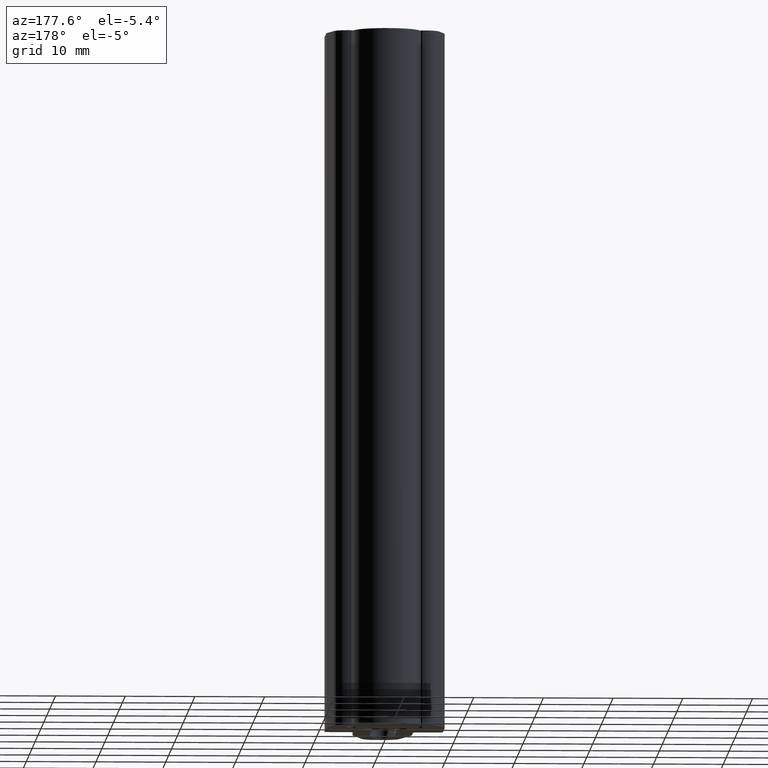
[diagram: clean part render]
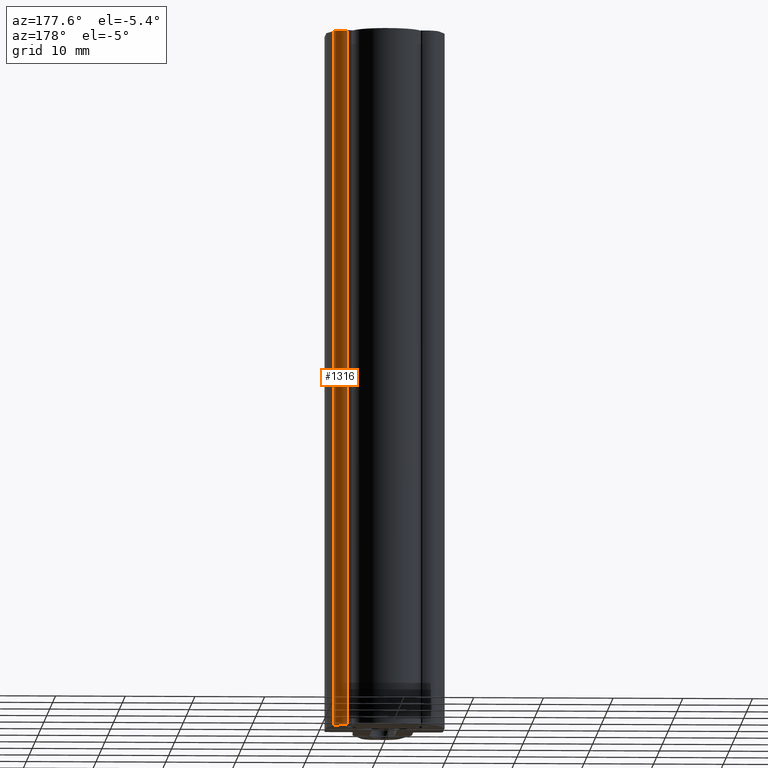
[diagram: same view with one face highlighted and labeled with its STEP entity id]
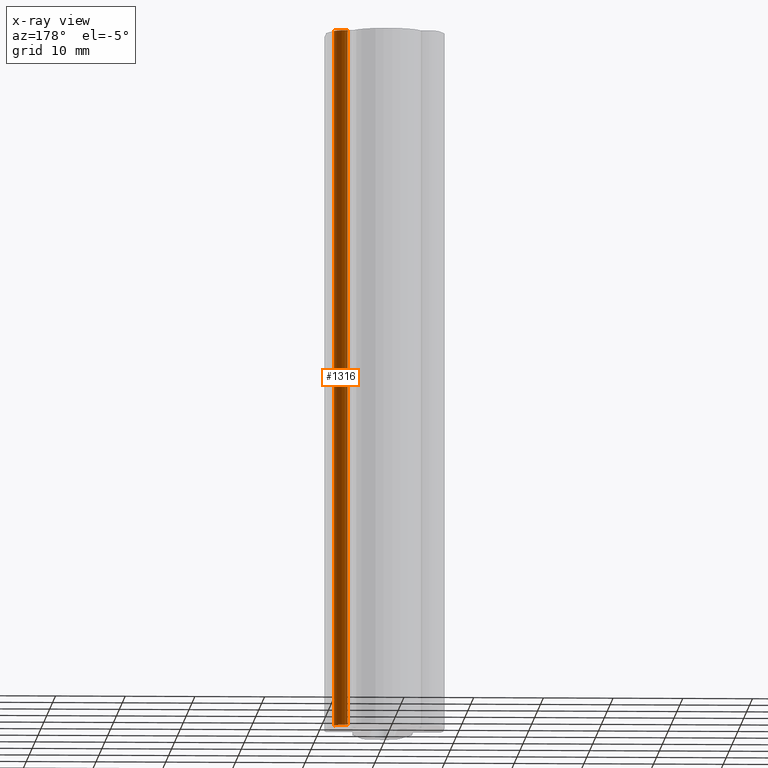
[diagram: x-ray of the same camera — body ghosted, the highlighted face saturated]
A machine part, auxiliary view. The second image highlights one B-rep face of the part: STEP entity #1316.
The next image is the same camera in x-ray: the body ghosted, the highlighted face saturated — about 0% of this face is hidden behind the body in this view.
In plain terms, the highlighted cylindrical surface (edge-blend (fillet) strip) has radius 2 mm, axis along (0, 0, 1).
Its self-contained STEP definition (entity closure, byte-faithful):
#29=CYLINDRICAL_SURFACE('',#1462,2.);
#77=FACE_OUTER_BOUND('',#145,.T.);
#145=EDGE_LOOP('',(#957,#958,#959,#960));
#241=LINE('',#2158,#351);
#242=LINE('',#2162,#352);
#351=VECTOR('',#1738,10.);
#352=VECTOR('',#1743,10.);
#427=CIRCLE('',#1403,2.);
#466=CIRCLE('',#1463,2.);
#515=VERTEX_POINT('',#1992);
#516=VERTEX_POINT('',#1994);
#577=VERTEX_POINT('',#2156);
#578=VERTEX_POINT('',#2160);
#643=EDGE_CURVE('',#515,#516,#427,.T.);
#725=EDGE_CURVE('',#577,#515,#241,.T.);
#726=EDGE_CURVE('',#578,#577,#466,.T.);
#727=EDGE_CURVE('',#578,#516,#242,.T.);
#957=ORIENTED_EDGE('',*,*,#725,.F.);
#958=ORIENTED_EDGE('',*,*,#726,.F.);
#959=ORIENTED_EDGE('',*,*,#727,.T.);
#960=ORIENTED_EDGE('',*,*,#643,.F.);
#1316=ADVANCED_FACE('',(#77),#29,.T.);
#1403=AXIS2_PLACEMENT_3D('',#1995,#1577,#1578);
#1462=AXIS2_PLACEMENT_3D('',#2159,#1739,#1740);
#1463=AXIS2_PLACEMENT_3D('',#2161,#1741,#1742);
#1577=DIRECTION('center_axis',(0.,0.,-1.));
#1578=DIRECTION('ref_axis',(-0.962789921059904,-0.270250935068619,0.));
#1738=DIRECTION('',(0.,0.,-1.));
#1739=DIRECTION('center_axis',(0.,0.,1.));
#1740=DIRECTION('ref_axis',(-0.962789921059904,-0.270250935068619,0.));
#1741=DIRECTION('center_axis',(0.,0.,1.));
#1742=DIRECTION('ref_axis',(-0.962789921059904,-0.270250935068619,0.));
#1743=DIRECTION('',(0.,0.,-1.));
#1992=CARTESIAN_POINT('',(5.63409492253915,1.49999999999965,-50.));
#1994=CARTESIAN_POINT('',(7.55967476465897,0.0405018701368887,-50.));
#1995=CARTESIAN_POINT('Origin',(5.63409492253915,-0.500000000000352,-50.));
#2156=CARTESIAN_POINT('',(5.63409492253915,1.49999999999965,50.));
#2158=CARTESIAN_POINT('',(5.63409492253915,1.49999999999965,0.));
#2159=CARTESIAN_POINT('Origin',(5.63409492253915,-0.500000000000352,0.));
#2160=CARTESIAN_POINT('',(7.55967476465897,0.0405018701368887,50.));
#2161=CARTESIAN_POINT('Origin',(5.63409492253915,-0.500000000000352,50.));
#2162=CARTESIAN_POINT('',(7.55967476465897,0.0405018701368895,0.));